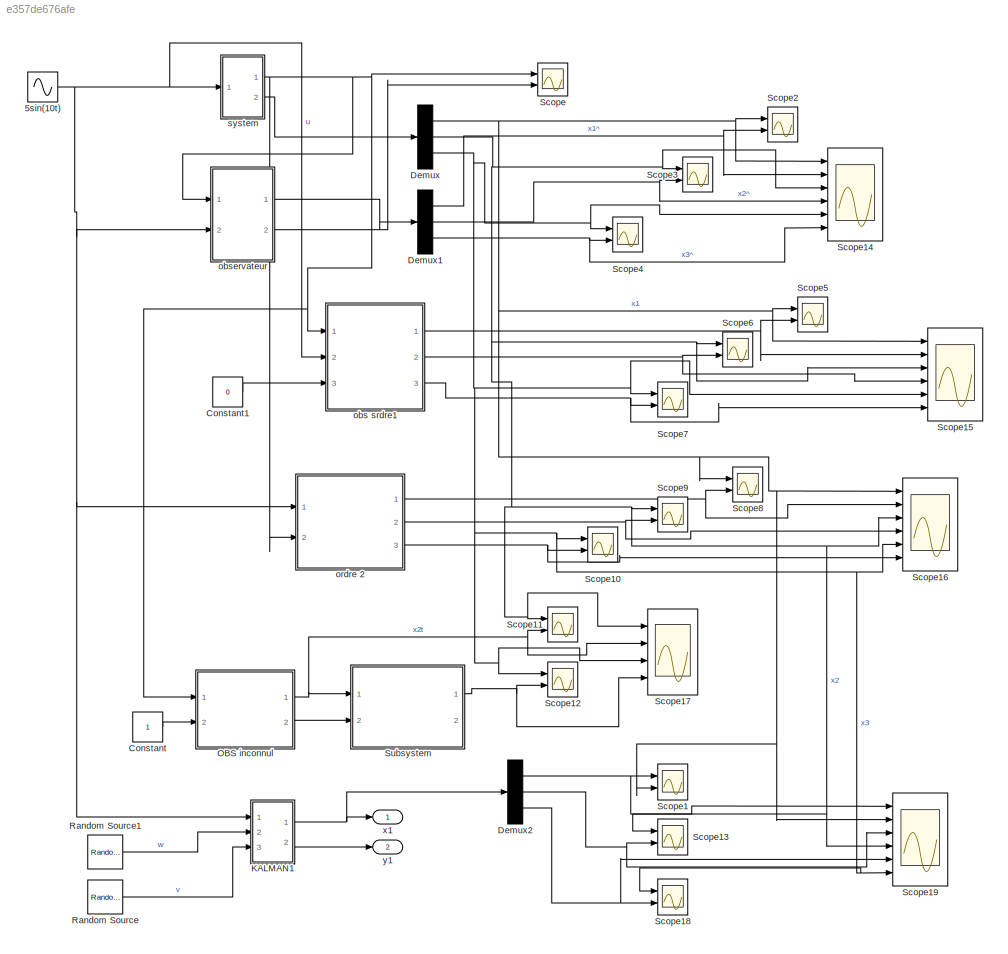
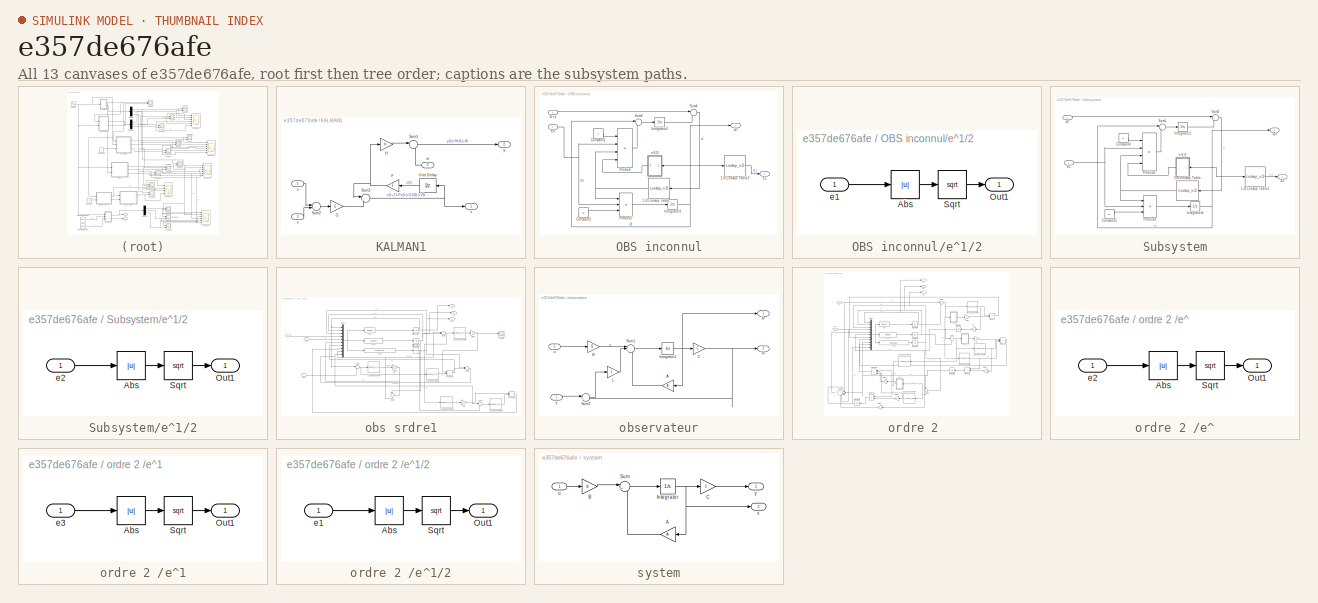
[diagram: thumbnail index - all 13 canvases of the model, root first then tree order]
MODEL slx_e357de676afe
KIND model
CONFIG AbsTol = auto
CONFIG EnableMultiTasking = off
CONFIG FixedStep = auto
CONFIG MaxStep = auto
CONFIG MinStep = auto
CONFIG RelTol = 1e-3
CONFIG SampleTimeConstraint = Unconstrained
CONFIG Solver = VariableStepAuto
CONFIG SolverName = VariableStepAuto
CONFIG StartTime = 0.0
CONFIG StopTime = 10.0
BLOCK [Sin] 5sin(10t)
  Amplitude = 5
  Frequency = 10
  Ports = [0, 1]
  SampleTime = 0
BLOCK [Constant] Constant
BLOCK [Constant] Constant1
  Value = 0
BLOCK [Demux] Demux
  DisplayOption = bar
  Outputs = 3
  Ports = [1, 3]
BLOCK [Demux] Demux1
  DisplayOption = bar
  Outputs = 3
  Ports = [1, 3]
BLOCK [Demux] Demux2
  DisplayOption = bar
  Outputs = 3
  Ports = [1, 3]
BLOCK [SubSystem] KALMAN1
  Ports = [3, 2]
  RequestExecContextInheritance = off
  Variant = off
BLOCK [Gain] KALMAN1/F
  Gain = F
  Multiplication = Matrix(K*u)
  OutDataTypeStr = Inherit: Inherit via internal rule
  ParamDataTypeStr = Inherit: Inherit via internal rule
  SaturateOnIntegerOverflow = off
BLOCK [Gain] KALMAN1/G
  Gain = G
  Multiplication = Matrix(K*u)
  OutDataTypeStr = Inherit: Inherit via internal rule
  ParamDataTypeStr = Inherit: Inherit via internal rule
  SaturateOnIntegerOverflow = off
BLOCK [Gain] KALMAN1/H
  Gain = H
  Multiplication = Matrix(K*u)
  OutDataTypeStr = Inherit: Inherit via internal rule
  ParamDataTypeStr = Inherit: Inherit via internal rule
  SaturateOnIntegerOverflow = off
BLOCK [Sum] KALMAN1/Sum1
  IconShape = round
  InputSameDT = off
  Inputs = |++
  OutDataTypeStr = Inherit: Inherit via internal rule
  Ports = [2, 1]
  SaturateOnIntegerOverflow = off
BLOCK [Sum] KALMAN1/Sum2
  IconShape = round
  InputSameDT = off
  Inputs = |++
  OutDataTypeStr = Inherit: Inherit via internal rule
  Ports = [2, 1]
  SaturateOnIntegerOverflow = off
BLOCK [Sum] KALMAN1/Sum3
  IconShape = round
  InputSameDT = off
  Inputs = |++
  OutDataTypeStr = Inherit: Inherit via internal rule
  Ports = [2, 1]
  SaturateOnIntegerOverflow = off
BLOCK [UnitDelay] KALMAN1/Unit Delay
  InputProcessing = Elements as channels (sample based)
  SampleTime = -1
BLOCK [Inport] KALMAN1/u
  IconDisplay = Port number
BLOCK [Inport] KALMAN1/v
  IconDisplay = Port number
  Port = 3
BLOCK [Inport] KALMAN1/w
  IconDisplay = Port number
  Port = 2
BLOCK [Outport] KALMAN1/x
  IconDisplay = Port number
BLOCK [Outport] KALMAN1/y
  IconDisplay = Port number
  Port = 2
BLOCK [SubSystem] OBS inconnul
  Ports = [2, 2]
  RequestExecContextInheritance = off
  Variant = off
BLOCK [Lookup_n-D] OBS inconnul/1-D Lookup Table
  BreakpointsForDimension1 = [-500 -0.011 -0.01 0.01 0.011 500]
  InternalRulePriority = Speed
  NumberOfTableDimensions = 1
  Ports = [1, 1]
  RndMeth = Simplest
  Table = [-1 -1 -1 1 1 1 ]
BLOCK [Lookup_n-D] OBS inconnul/1-D Lookup Table2
  BreakpointsForDimension1 = [-500 -0.011 -0.01 0.01 0.011 500]
  InternalRulePriority = Speed
  NumberOfTableDimensions = 1
  Ports = [1, 1]
  RndMeth = Simplest
  Table = [0 0 1 1 0 0 ]
BLOCK [Constant] OBS inconnul/Constant1
  Value = l1
BLOCK [Constant] OBS inconnul/Constant2
  Value = a2
BLOCK [Inport] OBS inconnul/E0
  IconDisplay = Port number
  Port = 2
BLOCK [Outport] OBS inconnul/E1
  IconDisplay = Port number
  Port = 2
BLOCK [Integrator] OBS inconnul/Integrator2
  Ports = [1, 1]
BLOCK [Integrator] OBS inconnul/Integrator3
  Ports = [1, 1]
BLOCK [Product] OBS inconnul/Product
  InputSameDT = off
  Inputs = 4
  OutDataTypeStr = Inherit: Inherit via internal rule
  Ports = [4, 1]
  RndMeth = Floor
  SaturateOnIntegerOverflow = off
BLOCK [Product] OBS inconnul/Product1
  InputSameDT = off
  Inputs = 3
  OutDataTypeStr = Inherit: Inherit via internal rule
  Ports = [3, 1]
  RndMeth = Floor
  SaturateOnIntegerOverflow = off
BLOCK [Sum] OBS inconnul/Sum3
  IconShape = round
  InputSameDT = off
  Inputs = |++
  OutDataTypeStr = Inherit: Inherit via internal rule
  Ports = [2, 1]
  SaturateOnIntegerOverflow = off
BLOCK [Sum] OBS inconnul/Sum4
  IconShape = round
  InputSameDT = off
  Inputs = |+-
  OutDataTypeStr = Inherit: Inherit via internal rule
  Ports = [2, 1]
  SaturateOnIntegerOverflow = off
BLOCK [SubSystem] OBS inconnul/e^1//2
  Ports = [1, 1]
  RequestExecContextInheritance = off
  Variant = off
BLOCK [Abs] OBS inconnul/e^1//2/Abs
  SaturateOnIntegerOverflow = off
BLOCK [Outport] OBS inconnul/e^1//2/Out1
  IconDisplay = Port number
BLOCK [Sqrt] OBS inconnul/e^1//2/Sqrt
BLOCK [Inport] OBS inconnul/e^1//2/e1
  IconDisplay = Port number
BLOCK [Inport] OBS inconnul/x1=y
  IconDisplay = Port number
BLOCK [Outport] OBS inconnul/x2t
  IconDisplay = Port number
BLOCK [Reference] Random Source  REF=dspsrcs4/Random
Source
  Ports = [0, 1]
  SourceBlock = dspsrcs4/Random\nSource
  SourceProductBaseCode = DS
  SourceProductName = DSP System Toolbox
  SourceType = Random Source
  UserDataPersistent = on
BLOCK [Reference] Random Source1  REF=dspsrcs4/Random
Source
  Ports = [0, 1]
  SourceBlock = dspsrcs4/Random\nSource
  SourceProductBaseCode = DS
  SourceProductName = DSP System Toolbox
  SourceType = Random Source
  UserDataPersistent = on
BLOCK [Scope] Scope
  NumInputPorts = 2
  Ports = [2]
  ScopeSpecificationString = Simulink.scopes.TimeScopeBlockCfg('CurrentConfiguration', extmgr.ConfigurationSet(extmgr.Configuration('Core','General UI',true),extmgr.Configuration('Core','Source UI',true),extmgr.Configuration('Sources','WiredSimulink',true),extmgr.Configuration('Visuals','Time Domain',true,'SerializedDisplays',{struct('MinYLimReal','-0.35246','MaxYLimReal','3.18706','YLabelReal','','MinYLimMag','0.00000','MaxY...<+1344ch>
BLOCK [Scope] Scope1
  NumInputPorts = 2
  Ports = [2]
  ScopeSpecificationString = Simulink.scopes.TimeScopeBlockCfg('CurrentConfiguration', extmgr.ConfigurationSet(extmgr.Configuration('Core','General UI',true),extmgr.Configuration('Core','Source UI',true),extmgr.Configuration('Sources','WiredSimulink',true,'DataLoggingVariableName','ScopeData5'),extmgr.Configuration('Visuals','Time Domain',true,'SerializedDisplays',{struct('MinYLimReal','-0.33432','MaxYLimReal','3.00884','YLab...<+1372ch>
BLOCK [Scope] Scope10
  NumInputPorts = 2
  Ports = [2]
  ScopeSpecificationString = Simulink.scopes.TimeScopeBlockCfg('CurrentConfiguration', extmgr.ConfigurationSet(extmgr.Configuration('Core','General UI',true),extmgr.Configuration('Core','Source UI',true),extmgr.Configuration('Sources','WiredSimulink',true,'DataLoggingVariableName','ScopeData6'),extmgr.Configuration('Visuals','Time Domain',true,'SerializedDisplays',{struct('MinYLimReal','-4.00045','MaxYLimReal','3.92275','YLab...<+1376ch>
BLOCK [Scope] Scope11
  NumInputPorts = 2
  Ports = [2]
  ScopeSpecificationString = Simulink.scopes.TimeScopeBlockCfg('CurrentConfiguration', extmgr.ConfigurationSet(extmgr.Configuration('Core','General UI',true),extmgr.Configuration('Core','Source UI',true),extmgr.Configuration('Sources','WiredSimulink',true,'DataLoggingVariableName','ScopeData7'),extmgr.Configuration('Visuals','Time Domain',true,'SerializedDisplays',{struct('MinYLimReal','-1.35375','MaxYLimReal','2.65592','YLab...<+1367ch>
BLOCK [Scope] Scope12
  NumInputPorts = 2
  Ports = [2]
  ScopeSpecificationString = Simulink.scopes.TimeScopeBlockCfg('CurrentConfiguration', extmgr.ConfigurationSet(extmgr.Configuration('Core','General UI',true),extmgr.Configuration('Core','Source UI',true),extmgr.Configuration('Sources','WiredSimulink',true,'DataLoggingVariableName','ScopeData8'),extmgr.Configuration('Visuals','Time Domain',true,'SerializedDisplays',{struct('MinYLimReal','-3.98415','MaxYLimReal','3.77602','YLab...<+1377ch>
BLOCK [Scope] Scope13
  NumInputPorts = 2
  Ports = [2]
  ScopeSpecificationString = Simulink.scopes.TimeScopeBlockCfg('CurrentConfiguration', extmgr.ConfigurationSet(extmgr.Configuration('Core','General UI',true),extmgr.Configuration('Core','Source UI',true),extmgr.Configuration('Sources','WiredSimulink',true,'DataLoggingVariableName','ScopeData6'),extmgr.Configuration('Visuals','Time Domain',true,'SerializedDisplays',{struct('MinYLimReal','-0.07858','MaxYLimReal','0.11411','YLab...<+1389ch>
BLOCK [Scope] Scope14
  NumInputPorts = 6
  Ports = [6]
  ScopeSpecificationString = Simulink.scopes.TimeScopeBlockCfg('CurrentConfiguration', extmgr.ConfigurationSet(extmgr.Configuration('Core','General UI',true),extmgr.Configuration('Core','Source UI',true),extmgr.Configuration('Sources','WiredSimulink',true,'DataLoggingVariableName','ScopeData1'),extmgr.Configuration('Visuals','Time Domain',true,'SerializedDisplays',{struct('MinYLimReal','-5.55359','MaxYLimReal','7.28373','YLab...<+1389ch>
BLOCK [Scope] Scope15
  NumInputPorts = 6
  Ports = [6]
  ScopeSpecificationString = Simulink.scopes.TimeScopeBlockCfg('CurrentConfiguration', extmgr.ConfigurationSet(extmgr.Configuration('Core','General UI',true),extmgr.Configuration('Core','Source UI',true),extmgr.Configuration('Sources','WiredSimulink',true,'DataLoggingVariableName','ScopeData2'),extmgr.Configuration('Visuals','Time Domain',true,'SerializedDisplays',{struct('MinYLimReal','-4.11384','MaxYLimReal','3.79043','YLab...<+1451ch>
BLOCK [Scope] Scope16
  NumInputPorts = 6
  Ports = [6]
  ScopeSpecificationString = Simulink.scopes.TimeScopeBlockCfg('CurrentConfiguration', extmgr.ConfigurationSet(extmgr.Configuration('Core','General UI',true),extmgr.Configuration('Core','Source UI',true),extmgr.Configuration('Sources','WiredSimulink',true,'DataLoggingVariableName','ScopeData3'),extmgr.Configuration('Visuals','Time Domain',true,'SerializedDisplays',{struct('MinYLimReal','-4.00045','MaxYLimReal','3.92275','YLab...<+1446ch>
BLOCK [Scope] Scope17
  NumInputPorts = 4
  Ports = [4]
  ScopeSpecificationString = Simulink.scopes.TimeScopeBlockCfg('CurrentConfiguration', extmgr.ConfigurationSet(extmgr.Configuration('Core','General UI',true),extmgr.Configuration('Core','Source UI',true),extmgr.Configuration('Sources','WiredSimulink',true,'DataLoggingVariableName','ScopeData4'),extmgr.Configuration('Visuals','Time Domain',true,'SerializedDisplays',{struct('MinYLimReal','-3.98415','MaxYLimReal','3.77602','YLab...<+1419ch>
BLOCK [Scope] Scope18
  NumInputPorts = 2
  Ports = [2]
  ScopeSpecificationString = Simulink.scopes.TimeScopeBlockCfg('CurrentConfiguration', extmgr.ConfigurationSet(extmgr.Configuration('Core','General UI',true),extmgr.Configuration('Core','Source UI',true),extmgr.Configuration('Sources','WiredSimulink',true,'DataLoggingVariableName','ScopeData7'),extmgr.Configuration('Visuals','Time Domain',true,'SerializedDisplays',{struct('MinYLimReal','-0.07858','MaxYLimReal','0.11411','YLab...<+1389ch>
BLOCK [Scope] Scope19
  NumInputPorts = 6
  Ports = [6]
  ScopeSpecificationString = Simulink.scopes.TimeScopeBlockCfg('CurrentConfiguration', extmgr.ConfigurationSet(extmgr.Configuration('Core','General UI',true),extmgr.Configuration('Core','Source UI',true),extmgr.Configuration('Sources','WiredSimulink',true,'DataLoggingVariableName','ScopeData8'),extmgr.Configuration('Visuals','Time Domain',true,'SerializedDisplays',{struct('MinYLimReal','-3.98415','MaxYLimReal','3.77602','YLab...<+1432ch>
BLOCK [Scope] Scope2
  NumInputPorts = 2
  Ports = [2]
  ScopeSpecificationString = Simulink.scopes.TimeScopeBlockCfg('CurrentConfiguration', extmgr.ConfigurationSet(extmgr.Configuration('Core','General UI',true),extmgr.Configuration('Core','Source UI',true),extmgr.Configuration('Sources','WiredSimulink',true,'DataLoggingVariableName','ScopeData1'),extmgr.Configuration('Visuals','Time Domain',true,'SerializedDisplays',{struct('MinYLimReal','-0.35246','MaxYLimReal','3.18706','YLab...<+1395ch>
BLOCK [Scope] Scope3
  NumInputPorts = 2
  Ports = [2]
  ScopeSpecificationString = Simulink.scopes.TimeScopeBlockCfg('CurrentConfiguration', extmgr.ConfigurationSet(extmgr.Configuration('Core','General UI',true),extmgr.Configuration('Core','Source UI',true),extmgr.Configuration('Sources','WiredSimulink',true,'DataLoggingVariableName','ScopeData2'),extmgr.Configuration('Visuals','Time Domain',true,'SerializedDisplays',{struct('MinYLimReal','-1.60878','MaxYLimReal','4.97968','YLab...<+1367ch>
BLOCK [Scope] Scope4
  NumInputPorts = 2
  Ports = [2]
  ScopeSpecificationString = Simulink.scopes.TimeScopeBlockCfg('CurrentConfiguration', extmgr.ConfigurationSet(extmgr.Configuration('Core','General UI',true),extmgr.Configuration('Core','Source UI',true),extmgr.Configuration('Sources','WiredSimulink',true,'DataLoggingVariableName','ScopeData3'),extmgr.Configuration('Visuals','Time Domain',true,'SerializedDisplays',{struct('MinYLimReal','-5.55356','MaxYLimReal','7.28373','YLab...<+1367ch>
BLOCK [Scope] Scope5
  NumInputPorts = 2
  Ports = [2]
  ScopeSpecificationString = Simulink.scopes.TimeScopeBlockCfg('CurrentConfiguration', extmgr.ConfigurationSet(extmgr.Configuration('Core','General UI',true),extmgr.Configuration('Core','Source UI',true),extmgr.Configuration('Sources','WiredSimulink',true,'DataLoggingVariableName','ScopeData1'),extmgr.Configuration('Visuals','Time Domain',true,'SerializedDisplays',{struct('MinYLimReal','-0.34517','MaxYLimReal','3.01092','YLab...<+1378ch>
BLOCK [Scope] Scope6
  NumInputPorts = 2
  Ports = [2]
  ScopeSpecificationString = Simulink.scopes.TimeScopeBlockCfg('CurrentConfiguration', extmgr.ConfigurationSet(extmgr.Configuration('Core','General UI',true),extmgr.Configuration('Core','Source UI',true),extmgr.Configuration('Sources','WiredSimulink',true,'DataLoggingVariableName','ScopeData2'),extmgr.Configuration('Visuals','Time Domain',true,'SerializedDisplays',{struct('MinYLimReal','-1.3693','MaxYLimReal','2.65765','YLabe...<+1395ch>
BLOCK [Scope] Scope7
  NumInputPorts = 2
  Ports = [2]
  ScopeSpecificationString = Simulink.scopes.TimeScopeBlockCfg('CurrentConfiguration', extmgr.ConfigurationSet(extmgr.Configuration('Core','General UI',true),extmgr.Configuration('Core','Source UI',true),extmgr.Configuration('Sources','WiredSimulink',true,'DataLoggingVariableName','ScopeData3'),extmgr.Configuration('Visuals','Time Domain',true,'SerializedDisplays',{struct('MinYLimReal','-4.11384','MaxYLimReal','3.79043','YLab...<+1378ch>
BLOCK [Scope] Scope8
  NumInputPorts = 2
  Ports = [2]
  ScopeSpecificationString = Simulink.scopes.TimeScopeBlockCfg('CurrentConfiguration', extmgr.ConfigurationSet(extmgr.Configuration('Core','General UI',true),extmgr.Configuration('Core','Source UI',true),extmgr.Configuration('Sources','WiredSimulink',true,'DataLoggingVariableName','ScopeData4'),extmgr.Configuration('Visuals','Time Domain',true,'SerializedDisplays',{struct('MinYLimReal','-0.33461','MaxYLimReal','3.01149','YLab...<+1395ch>
BLOCK [Scope] Scope9
  NumInputPorts = 2
  Ports = [2]
  ScopeSpecificationString = Simulink.scopes.TimeScopeBlockCfg('CurrentConfiguration', extmgr.ConfigurationSet(extmgr.Configuration('Core','General UI',true),extmgr.Configuration('Core','Source UI',true),extmgr.Configuration('Sources','WiredSimulink',true,'DataLoggingVariableName','ScopeData5'),extmgr.Configuration('Visuals','Time Domain',true,'SerializedDisplays',{struct('MinYLimReal','-1.35342','MaxYLimReal','2.65589','YLab...<+1376ch>
BLOCK [SubSystem] Subsystem
  Ports = [2, 2]
  RequestExecContextInheritance = off
  Variant = off
BLOCK [Lookup_n-D] Subsystem/1-D Lookup Table
  BreakpointsForDimension1 = [-500 -0.011 -0.01 0.01 0.011 500]
  InternalRulePriority = Speed
  NumberOfTableDimensions = 1
  Ports = [1, 1]
  RndMeth = Simplest
  Table = [-1 -1 -1 1 1 1 ]
BLOCK [Lookup_n-D] Subsystem/1-D Lookup Table1
  BreakpointsForDimension1 = [-500 -0.011 -0.01 0.01 0.011 500]
  InternalRulePriority = Speed
  NumberOfTableDimensions = 1
  Ports = [1, 1]
  RndMeth = Simplest
  Table = [0 0 1 1 0 0 ]
BLOCK [Constant] Subsystem/Constant4
  Value = l2
BLOCK [Constant] Subsystem/Constant5
  Value = a2
BLOCK [Inport] Subsystem/E1
  IconDisplay = Port number
  Port = 2
BLOCK [Outport] Subsystem/E2
  IconDisplay = Port number
  Port = 2
BLOCK [Integrator] Subsystem/Integrator1
  Ports = [1, 1]
BLOCK [Integrator] Subsystem/Integrator4
  Ports = [1, 1]
BLOCK [Product] Subsystem/Product2
  InputSameDT = off
  Inputs = 4
  OutDataTypeStr = Inherit: Inherit via internal rule
  Ports = [4, 1]
  RndMeth = Floor
  SaturateOnIntegerOverflow = off
BLOCK [Product] Subsystem/Product3
  InputSameDT = off
  Inputs = 3
  OutDataTypeStr = Inherit: Inherit via internal rule
  Ports = [3, 1]
  RndMeth = Floor
  SaturateOnIntegerOverflow = off
BLOCK [Sum] Subsystem/Sum1
  IconShape = round
  InputSameDT = off
  Inputs = |++
  OutDataTypeStr = Inherit: Inherit via internal rule
  Ports = [2, 1]
  SaturateOnIntegerOverflow = off
BLOCK [Sum] Subsystem/Sum2
  IconShape = round
  InputSameDT = off
  Inputs = |+-
  OutDataTypeStr = Inherit: Inherit via internal rule
  Ports = [2, 1]
  SaturateOnIntegerOverflow = off
BLOCK [SubSystem] Subsystem/e^1//2
  Ports = [1, 1]
  RequestExecContextInheritance = off
  Variant = off
BLOCK [Abs] Subsystem/e^1//2/Abs
  SaturateOnIntegerOverflow = off
BLOCK [Outport] Subsystem/e^1//2/Out1
  IconDisplay = Port number
BLOCK [Sqrt] Subsystem/e^1//2/Sqrt
BLOCK [Inport] Subsystem/e^1//2/e2
  IconDisplay = Port number
BLOCK [Inport] Subsystem/x2t
  IconDisplay = Port number
BLOCK [Outport] Subsystem/x3t
  IconDisplay = Port number
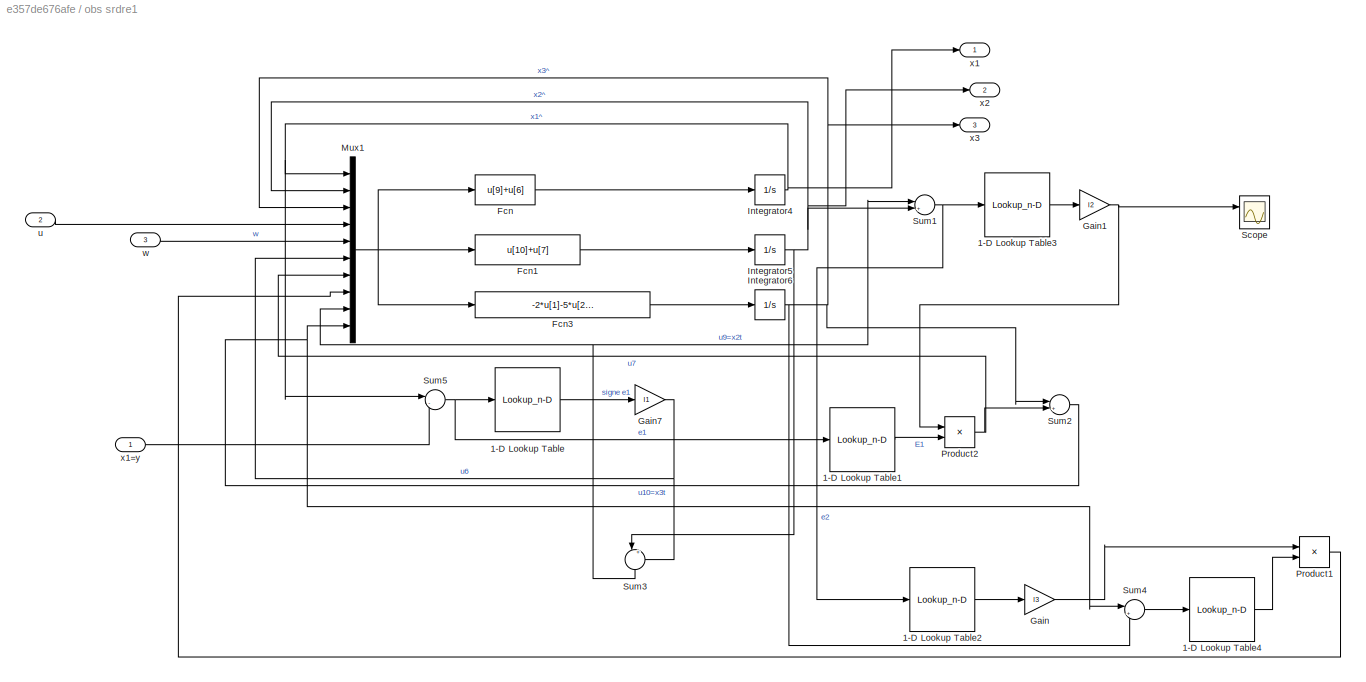
BLOCK [SubSystem] obs srdre1
  Ports = [3, 3]
  RequestExecContextInheritance = off
  Variant = off
BLOCK [Lookup_n-D] obs srdre1/1-D Lookup Table
  BreakpointsForDimension1 = [-500 -0.011 -0.01 0.01 0.011 500]
  InternalRulePriority = Speed
  NumberOfTableDimensions = 1
  Ports = [1, 1]
  RndMeth = Simplest
  Table = [-1 -1 -1 1 1 1 ]
BLOCK [Lookup_n-D] obs srdre1/1-D Lookup Table1
  BreakpointsForDimension1 = [-500 -0.011 -0.01 0.01 0.011 500]
  InternalRulePriority = Speed
  NumberOfTableDimensions = 1
  Ports = [1, 1]
  RndMeth = Simplest
  Table = [0 0 1 1 0 0 ]
BLOCK [Lookup_n-D] obs srdre1/1-D Lookup Table2
  BreakpointsForDimension1 = [-500 -0.011 -0.01 0.01 0.011 500]
  InternalRulePriority = Speed
  NumberOfTableDimensions = 1
  Ports = [1, 1]
  RndMeth = Simplest
  Table = [0 0 1 1 0 0 ]
BLOCK [Lookup_n-D] obs srdre1/1-D Lookup Table3
  BreakpointsForDimension1 = [-500 -0.011 -0.01 0.01 0.011 500]
  InternalRulePriority = Speed
  NumberOfTableDimensions = 1
  Ports = [1, 1]
  RndMeth = Simplest
  Table = [-1 -1 -1 1 1 1 ]
BLOCK [Lookup_n-D] obs srdre1/1-D Lookup Table4
  BreakpointsForDimension1 = [-500 -0.011 -0.01 0.01 0.011 500]
  InternalRulePriority = Speed
  NumberOfTableDimensions = 1
  Ports = [1, 1]
  RndMeth = Simplest
  Table = [-1 -1 -1 1 1 1 ]
BLOCK [Fcn] obs srdre1/Fcn
  Expr = u[9]+u[6]
BLOCK [Fcn] obs srdre1/Fcn1
  Expr = u[10]+u[7]
BLOCK [Fcn] obs srdre1/Fcn3
  Expr = -2*u[1]-5*u[2]-4*u[3]+u[4]+u[5]+u[8]
BLOCK [Gain] obs srdre1/Gain
  Gain = l3
  OutDataTypeStr = Inherit: Inherit via internal rule
  ParamDataTypeStr = Inherit: Inherit via internal rule
  SaturateOnIntegerOverflow = off
BLOCK [Gain] obs srdre1/Gain1
  Gain = l2
  OutDataTypeStr = Inherit: Inherit via internal rule
  ParamDataTypeStr = Inherit: Inherit via internal rule
  SaturateOnIntegerOverflow = off
BLOCK [Gain] obs srdre1/Gain7
  Gain = l1
  OutDataTypeStr = Inherit: Inherit via internal rule
  ParamDataTypeStr = Inherit: Inherit via internal rule
  SaturateOnIntegerOverflow = off
BLOCK [Integrator] obs srdre1/Integrator4
  Ports = [1, 1]
BLOCK [Integrator] obs srdre1/Integrator5
  Ports = [1, 1]
BLOCK [Integrator] obs srdre1/Integrator6
  Ports = [1, 1]
BLOCK [Mux] obs srdre1/Mux1
  DisplayOption = bar
  Inputs = 10
  Ports = [10, 1]
BLOCK [Product] obs srdre1/Product1
  InputSameDT = off
  OutDataTypeStr = Inherit: Inherit via internal rule
  Ports = [2, 1]
  RndMeth = Floor
  SaturateOnIntegerOverflow = off
BLOCK [Product] obs srdre1/Product2
  InputSameDT = off
  OutDataTypeStr = Inherit: Inherit via internal rule
  Ports = [2, 1]
  RndMeth = Floor
  SaturateOnIntegerOverflow = off
BLOCK [Scope] obs srdre1/Scope
  NumInputPorts = 2
  Ports = [2]
  ScopeSpecificationString = Simulink.scopes.TimeScopeBlockCfg('CurrentConfiguration', extmgr.ConfigurationSet(extmgr.Configuration('Core','General UI',true),extmgr.Configuration('Core','Source UI',true),extmgr.Configuration('Sources','WiredSimulink',true,'DataLoggingVariableName','ScopeData1'),extmgr.Configuration('Visuals','Time Domain',true,'SerializedDisplays',{struct('MinYLimReal','-1.00000','MaxYLimReal','1.00000','YLab...<+1375ch>
BLOCK [Sum] obs srdre1/Sum1
  IconShape = round
  InputSameDT = off
  Inputs = |+-
  OutDataTypeStr = Inherit: Inherit via internal rule
  Ports = [2, 1]
  SaturateOnIntegerOverflow = off
BLOCK [Sum] obs srdre1/Sum2
  IconShape = round
  InputSameDT = off
  Inputs = |++
  OutDataTypeStr = Inherit: Inherit via internal rule
  Ports = [2, 1]
  SaturateOnIntegerOverflow = off
BLOCK [Sum] obs srdre1/Sum3
  IconShape = round
  InputSameDT = off
  Inputs = |++
  OutDataTypeStr = Inherit: Inherit via internal rule
  Ports = [2, 1]
  SaturateOnIntegerOverflow = off
BLOCK [Sum] obs srdre1/Sum4
  IconShape = round
  InputSameDT = off
  Inputs = |+-
  OutDataTypeStr = Inherit: Inherit via internal rule
  Ports = [2, 1]
  SaturateOnIntegerOverflow = off
BLOCK [Sum] obs srdre1/Sum5
  IconShape = round
  InputSameDT = off
  Inputs = |-+
  OutDataTypeStr = Inherit: Inherit via internal rule
  Ports = [2, 1]
  SaturateOnIntegerOverflow = off
BLOCK [Inport] obs srdre1/u
  IconDisplay = Port number
  Port = 2
BLOCK [Inport] obs srdre1/w
  IconDisplay = Port number
  Port = 3
BLOCK [Outport] obs srdre1/x1
  IconDisplay = Port number
BLOCK [Inport] obs srdre1/x1=y
  IconDisplay = Port number
BLOCK [Outport] obs srdre1/x2
  IconDisplay = Port number
  Port = 2
BLOCK [Outport] obs srdre1/x3
  IconDisplay = Port number
  Port = 3
BLOCK [SubSystem] observateur
  Ports = [2, 2]
  RequestExecContextInheritance = off
  Variant = off
BLOCK [Gain] observateur/A
  Gain = A
  Multiplication = Matrix(K*u) (u vector)
  OutDataTypeStr = Inherit: Inherit via internal rule
  ParamDataTypeStr = Inherit: Inherit via internal rule
  SaturateOnIntegerOverflow = off
BLOCK [Gain] observateur/B
  Gain = B
  Multiplication = Matrix(K*u) (u vector)
  OutDataTypeStr = Inherit: Inherit via internal rule
  ParamDataTypeStr = Inherit: Inherit via internal rule
  SaturateOnIntegerOverflow = off
BLOCK [Gain] observateur/C
  Gain = C
  Multiplication = Matrix(K*u) (u vector)
  OutDataTypeStr = Inherit: Inherit via internal rule
  ParamDataTypeStr = Inherit: Inherit via internal rule
  SaturateOnIntegerOverflow = off
BLOCK [Integrator] observateur/Integrator1
  InitialCondition = [2 4 6]
  Ports = [1, 1]
BLOCK [Gain] observateur/L
  Gain = L
  Multiplication = Matrix(K*u) (u vector)
  OutDataTypeStr = Inherit: Inherit via internal rule
  ParamDataTypeStr = Inherit: Inherit via internal rule
  SaturateOnIntegerOverflow = off
BLOCK [Sum] observateur/Sum1
  IconShape = round
  InputSameDT = off
  Inputs = |+++
  OutDataTypeStr = Inherit: Inherit via internal rule
  Ports = [3, 1]
  SaturateOnIntegerOverflow = off
BLOCK [Sum] observateur/Sum2
  IconShape = round
  InputSameDT = off
  Inputs = |+-
  OutDataTypeStr = Inherit: Inherit via internal rule
  Ports = [2, 1]
  SaturateOnIntegerOverflow = off
BLOCK [Outport] observateur/X^
  IconDisplay = Port number
BLOCK [Outport] observateur/Y^
  IconDisplay = Port number
  Port = 2
BLOCK [Inport] observateur/u
  IconDisplay = Port number
  Port = 2
BLOCK [Inport] observateur/y
  IconDisplay = Port number
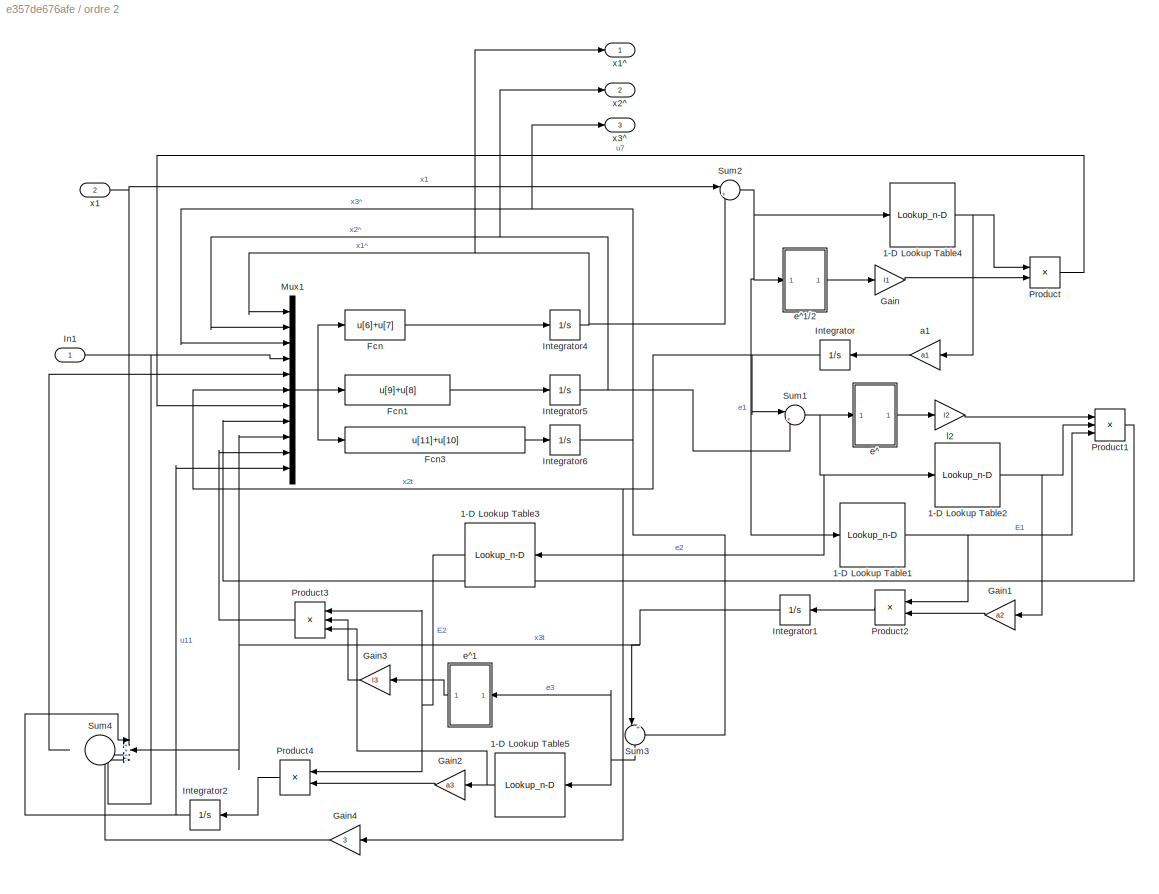
BLOCK [SubSystem] ordre 2 
  Ports = [2, 3]
  RequestExecContextInheritance = off
  Variant = off
BLOCK [Lookup_n-D] ordre 2 /1-D Lookup Table1
  BreakpointsForDimension1 = [-500 -0.011 -0.01 0.01 0.011 500]
  InternalRulePriority = Speed
  NumberOfTableDimensions = 1
  Ports = [1, 1]
  RndMeth = Simplest
  Table = [0 0 1 1 0 0 ]
BLOCK [Lookup_n-D] ordre 2 /1-D Lookup Table2
  BreakpointsForDimension1 = [-500 -0.011 -0.01 0.01 0.011 500]
  InternalRulePriority = Speed
  NumberOfTableDimensions = 1
  Ports = [1, 1]
  RndMeth = Simplest
  Table = [-1 -1 -1 1 1 1 ]
BLOCK [Lookup_n-D] ordre 2 /1-D Lookup Table3
  BreakpointsForDimension1 = [-500 -0.011 -0.01 0.01 0.011 500]
  InternalRulePriority = Speed
  NumberOfTableDimensions = 1
  Ports = [1, 1]
  RndMeth = Simplest
  Table = [0 0 1 1 0 0 ]
BLOCK [Lookup_n-D] ordre 2 /1-D Lookup Table4
  BreakpointsForDimension1 = [-500 -0.011 -0.01 0.01 0.011 500]
  InternalRulePriority = Speed
  NumberOfTableDimensions = 1
  Ports = [1, 1]
  RndMeth = Simplest
  Table = [-1 -1 -1 1 1 1 ]
BLOCK [Lookup_n-D] ordre 2 /1-D Lookup Table5
  BreakpointsForDimension1 = [-500 -0.011 -0.01 0.01 0.011 500]
  InternalRulePriority = Speed
  NumberOfTableDimensions = 1
  Ports = [1, 1]
  RndMeth = Simplest
  Table = [-1 -1 -1 1 1 1 ]
BLOCK [Fcn] ordre 2 /Fcn
  Expr = u[6]+u[7]
BLOCK [Fcn] ordre 2 /Fcn1
  Expr = u[9]+u[8]
BLOCK [Fcn] ordre 2 /Fcn3
  Expr = u[11]+u[10]
BLOCK [Gain] ordre 2 /Gain
  Gain = l1
  OutDataTypeStr = Inherit: Inherit via internal rule
  ParamDataTypeStr = Inherit: Inherit via internal rule
  SaturateOnIntegerOverflow = off
BLOCK [Gain] ordre 2 /Gain1
  Gain = a2
  OutDataTypeStr = Inherit: Inherit via internal rule
  ParamDataTypeStr = Inherit: Inherit via internal rule
  SaturateOnIntegerOverflow = off
BLOCK [Gain] ordre 2 /Gain2
  Gain = a3
  OutDataTypeStr = Inherit: Inherit via internal rule
  ParamDataTypeStr = Inherit: Inherit via internal rule
  SaturateOnIntegerOverflow = off
BLOCK [Gain] ordre 2 /Gain3
  Gain = l3
  OutDataTypeStr = Inherit: Inherit via internal rule
  ParamDataTypeStr = Inherit: Inherit via internal rule
  SaturateOnIntegerOverflow = off
BLOCK [Gain] ordre 2 /Gain4
  Gain = 3
  OutDataTypeStr = Inherit: Inherit via internal rule
  ParamDataTypeStr = Inherit: Inherit via internal rule
  SaturateOnIntegerOverflow = off
BLOCK [Inport] ordre 2 /In1
  IconDisplay = Port number
BLOCK [Integrator] ordre 2 /Integrator
  Ports = [1, 1]
BLOCK [Integrator] ordre 2 /Integrator1
  Ports = [1, 1]
BLOCK [Integrator] ordre 2 /Integrator2
  Ports = [1, 1]
BLOCK [Integrator] ordre 2 /Integrator4
  Ports = [1, 1]
BLOCK [Integrator] ordre 2 /Integrator5
  Ports = [1, 1]
BLOCK [Integrator] ordre 2 /Integrator6
  Ports = [1, 1]
BLOCK [Mux] ordre 2 /Mux1
  DisplayOption = bar
  Inputs = 11
  Ports = [11, 1]
BLOCK [Product] ordre 2 /Product
  InputSameDT = off
  OutDataTypeStr = Inherit: Inherit via internal rule
  Ports = [2, 1]
  RndMeth = Floor
  SaturateOnIntegerOverflow = off
BLOCK [Product] ordre 2 /Product1
  InputSameDT = off
  Inputs = 3
  OutDataTypeStr = Inherit: Inherit via internal rule
  Ports = [3, 1]
  RndMeth = Floor
  SaturateOnIntegerOverflow = off
BLOCK [Product] ordre 2 /Product2
  InputSameDT = off
  OutDataTypeStr = Inherit: Inherit via internal rule
  Ports = [2, 1]
  RndMeth = Floor
  SaturateOnIntegerOverflow = off
BLOCK [Product] ordre 2 /Product3
  InputSameDT = off
  Inputs = 3
  OutDataTypeStr = Inherit: Inherit via internal rule
  Ports = [3, 1]
  RndMeth = Floor
  SaturateOnIntegerOverflow = off
BLOCK [Product] ordre 2 /Product4
  InputSameDT = off
  OutDataTypeStr = Inherit: Inherit via internal rule
  Ports = [2, 1]
  RndMeth = Floor
  SaturateOnIntegerOverflow = off
BLOCK [Sum] ordre 2 /Sum1
  IconShape = round
  InputSameDT = off
  Inputs = |+-
  OutDataTypeStr = Inherit: Inherit via internal rule
  Ports = [2, 1]
  SaturateOnIntegerOverflow = off
BLOCK [Sum] ordre 2 /Sum2
  IconShape = round
  InputSameDT = off
  Inputs = |+-
  OutDataTypeStr = Inherit: Inherit via internal rule
  Ports = [2, 1]
  SaturateOnIntegerOverflow = off
BLOCK [Sum] ordre 2 /Sum3
  IconShape = round
  InputSameDT = off
  Inputs = |+-
  OutDataTypeStr = Inherit: Inherit via internal rule
  Ports = [2, 1]
  SaturateOnIntegerOverflow = off
BLOCK [Sum] ordre 2 /Sum4
  IconShape = round
  InputSameDT = off
  Inputs = |+++--
  OutDataTypeStr = Inherit: Inherit via internal rule
  Ports = [5, 1]
  SaturateOnIntegerOverflow = off
BLOCK [Gain] ordre 2 /a1
  Gain = a1
  OutDataTypeStr = Inherit: Inherit via internal rule
  ParamDataTypeStr = Inherit: Inherit via internal rule
  SaturateOnIntegerOverflow = off
BLOCK [SubSystem] ordre 2 /e^
  Ports = [1, 1]
  RequestExecContextInheritance = off
  Variant = off
BLOCK [Abs] ordre 2 /e^/Abs
  SaturateOnIntegerOverflow = off
BLOCK [Outport] ordre 2 /e^/Out1
  IconDisplay = Port number
BLOCK [Sqrt] ordre 2 /e^/Sqrt
BLOCK [Inport] ordre 2 /e^/e2
  IconDisplay = Port number
BLOCK [SubSystem] ordre 2 /e^1
  Ports = [1, 1]
  RequestExecContextInheritance = off
  Variant = off
BLOCK [SubSystem] ordre 2 /e^1//2
  Ports = [1, 1]
  RequestExecContextInheritance = off
  Variant = off
BLOCK [Abs] ordre 2 /e^1//2/Abs
  SaturateOnIntegerOverflow = off
BLOCK [Outport] ordre 2 /e^1//2/Out1
  IconDisplay = Port number
BLOCK [Sqrt] ordre 2 /e^1//2/Sqrt
BLOCK [Inport] ordre 2 /e^1//2/e1
  IconDisplay = Port number
BLOCK [Abs] ordre 2 /e^1/Abs
  SaturateOnIntegerOverflow = off
BLOCK [Outport] ordre 2 /e^1/Out1
  IconDisplay = Port number
BLOCK [Sqrt] ordre 2 /e^1/Sqrt
BLOCK [Inport] ordre 2 /e^1/e3
  IconDisplay = Port number
BLOCK [Gain] ordre 2 /l2
  Gain = l2
  OutDataTypeStr = Inherit: Inherit via internal rule
  ParamDataTypeStr = Inherit: Inherit via internal rule
  SaturateOnIntegerOverflow = off
BLOCK [Inport] ordre 2 /x1 
  IconDisplay = Port number
  Port = 2
BLOCK [Outport] ordre 2 /x1^
  IconDisplay = Port number
BLOCK [Outport] ordre 2 /x2^
  IconDisplay = Port number
  Port = 2
BLOCK [Outport] ordre 2 /x3^
  IconDisplay = Port number
  Port = 3
BLOCK [SubSystem] system
  Ports = [1, 2]
  RequestExecContextInheritance = off
  Variant = off
BLOCK [Gain] system/A
  Gain = A
  Multiplication = Matrix(K*u) (u vector)
  OutDataTypeStr = Inherit: Inherit via internal rule
  ParamDataTypeStr = Inherit: Inherit via internal rule
  SaturateOnIntegerOverflow = off
BLOCK [Gain] system/B
  Gain = B
  Multiplication = Matrix(K*u) (u vector)
  OutDataTypeStr = Inherit: Inherit via internal rule
  ParamDataTypeStr = Inherit: Inherit via internal rule
  SaturateOnIntegerOverflow = off
BLOCK [Gain] system/C
  Gain = C
  Multiplication = Matrix(K*u) (u vector)
  OutDataTypeStr = Inherit: Inherit via internal rule
  ParamDataTypeStr = Inherit: Inherit via internal rule
  SaturateOnIntegerOverflow = off
BLOCK [Integrator] system/Integrator
  InitialCondition = [1 2 3]
  Ports = [1, 1]
BLOCK [Sum] system/Sum
  IconShape = round
  InputSameDT = off
  Inputs = |++
  OutDataTypeStr = Inherit: Inherit via internal rule
  Ports = [2, 1]
  SaturateOnIntegerOverflow = off
BLOCK [Inport] system/u 
  IconDisplay = Port number
BLOCK [Outport] system/x
  IconDisplay = Port number
  Port = 2
BLOCK [Outport] system/y
  IconDisplay = Port number
BLOCK [Outport] x1
  IconDisplay = Port number
BLOCK [Outport] y1
  IconDisplay = Port number
  Port = 2
NET 5sin(10t):1 -> KALMAN1:1, obs srdre1:2, observateur:2, ordre 2 :1, system:1
LINE Constant1:1 -> obs srdre1:3
LINE Constant:1 -> OBS inconnul:2
NET Demux1:1 -> Scope14:2, Scope2:2
NET Demux1:2 -> Scope14:4, Scope3:2
NET Demux1:3 -> Scope14:6, Scope4:2
NET Demux2:1 -> Scope19:1, Scope1:1
NET Demux2:2 -> Scope13:2, Scope19:3
NET Demux2:3 -> Scope18:2, Scope19:5
NET Demux:1 -> Scope14:1, Scope15:1, Scope16:1, Scope19:2, Scope1:2, Scope2:1, Scope5:1, Scope8:1
NET Demux:2 -> Scope11:1, Scope13:1, Scope14:3, Scope15:3, Scope16:3, Scope17:1, Scope19:4, Scope3:1, Scope6:1, Scope9:1
NET Demux:3 -> Scope10:1, Scope12:1, Scope14:5, Scope15:5, Scope16:5, Scope17:3, Scope18:1, Scope19:6, Scope4:1, Scope7:1
NET KALMAN1/F:1 -> KALMAN1/H:1, KALMAN1/Sum3:1
LINE KALMAN1/G:1 -> KALMAN1/Sum3:2
LINE KALMAN1/H:1 -> KALMAN1/Sum1:1
LINE KALMAN1/Sum1:1 -> KALMAN1/y:1
LINE KALMAN1/Sum2:1 -> KALMAN1/G:1
NET KALMAN1/Sum3:1 -> KALMAN1/Unit Delay:1, KALMAN1/x:1
LINE KALMAN1/Unit Delay:1 -> KALMAN1/F:1
LINE KALMAN1/u:1 -> KALMAN1/Sum2:1
LINE KALMAN1/v:1 -> KALMAN1/Sum2:2
LINE KALMAN1/w:1 -> KALMAN1/Sum1:2
NET KALMAN1:1 -> Demux2:1, x1:1
LINE KALMAN1:2 -> y1:1
LINE OBS inconnul/1-D Lookup Table2:1 -> OBS inconnul/E1:1
NET OBS inconnul/1-D Lookup Table:1 -> OBS inconnul/Product1:1, OBS inconnul/Product:3
LINE OBS inconnul/Constant1:1 -> OBS inconnul/Product:1
LINE OBS inconnul/Constant2:1 -> OBS inconnul/Product1:3
NET OBS inconnul/E0:1 -> OBS inconnul/Product1:2, OBS inconnul/Product:2
LINE OBS inconnul/Integrator2:1 -> OBS inconnul/Sum4:2
NET OBS inconnul/Integrator3:1 -> OBS inconnul/Sum3:1, OBS inconnul/x2t:1
LINE OBS inconnul/Product1:1 -> OBS inconnul/Integrator3:1
LINE OBS inconnul/Product:1 -> OBS inconnul/Sum3:2
LINE OBS inconnul/Sum3:1 -> OBS inconnul/Integrator2:1
NET OBS inconnul/Sum4:1 -> OBS inconnul/1-D Lookup Table2:1, OBS inconnul/1-D Lookup Table:1, OBS inconnul/e^1//2:1
LINE OBS inconnul/e^1//2/Abs:1 -> OBS inconnul/e^1//2/Sqrt:1
LINE OBS inconnul/e^1//2/Sqrt:1 -> OBS inconnul/e^1//2/Out1:1
LINE OBS inconnul/e^1//2/e1:1 -> OBS inconnul/e^1//2/Abs:1
LINE OBS inconnul/e^1//2:1 -> OBS inconnul/Product:4
LINE OBS inconnul/x1=y:1 -> OBS inconnul/Sum4:1
NET OBS inconnul:1 -> Scope11:2, Scope17:2, Subsystem:1
LINE OBS inconnul:2 -> Subsystem:2
LINE Random Source1:1 -> KALMAN1:2
LINE Random Source:1 -> KALMAN1:3
LINE Subsystem/1-D Lookup Table1:1 -> Subsystem/E2:1
NET Subsystem/1-D Lookup Table:1 -> Subsystem/Product2:3, Subsystem/Product3:1
LINE Subsystem/Constant4:1 -> Subsystem/Product2:1
LINE Subsystem/Constant5:1 -> Subsystem/Product3:3
NET Subsystem/E1:1 -> Subsystem/Product2:2, Subsystem/Product3:2
LINE Subsystem/Integrator1:1 -> Subsystem/Sum2:2
NET Subsystem/Integrator4:1 -> Subsystem/Sum1:1, Subsystem/x3t:1
LINE Subsystem/Product2:1 -> Subsystem/Sum1:2
LINE Subsystem/Product3:1 -> Subsystem/Integrator4:1
LINE Subsystem/Sum1:1 -> Subsystem/Integrator1:1
NET Subsystem/Sum2:1 -> Subsystem/1-D Lookup Table1:1, Subsystem/1-D Lookup Table:1, Subsystem/e^1//2:1
LINE Subsystem/e^1//2/Abs:1 -> Subsystem/e^1//2/Sqrt:1
LINE Subsystem/e^1//2/Sqrt:1 -> Subsystem/e^1//2/Out1:1
LINE Subsystem/e^1//2/e2:1 -> Subsystem/e^1//2/Abs:1
LINE Subsystem/e^1//2:1 -> Subsystem/Product2:4
LINE Subsystem/x2t:1 -> Subsystem/Sum2:1
NET Subsystem:1 -> Scope12:2, Scope17:4
LINE obs srdre1/1-D Lookup Table1:1 -> obs srdre1/Product2:2
LINE obs srdre1/1-D Lookup Table2:1 -> obs srdre1/Gain:1
LINE obs srdre1/1-D Lookup Table3:1 -> obs srdre1/Gain1:1
LINE obs srdre1/1-D Lookup Table4:1 -> obs srdre1/Product1:2
LINE obs srdre1/1-D Lookup Table:1 -> obs srdre1/Gain7:1
LINE obs srdre1/Fcn1:1 -> obs srdre1/Integrator5:1
LINE obs srdre1/Fcn3:1 -> obs srdre1/Integrator6:1
LINE obs srdre1/Fcn:1 -> obs srdre1/Integrator4:1
NET obs srdre1/Gain1:1 -> obs srdre1/Product2:1, obs srdre1/Scope:1
NET obs srdre1/Gain7:1 -> obs srdre1/Mux1:6, obs srdre1/Sum3:2
LINE obs srdre1/Gain:1 -> obs srdre1/Product1:1
NET obs srdre1/Integrator4:1 -> obs srdre1/Mux1:1, obs srdre1/Sum5:1, obs srdre1/x1:1
NET obs srdre1/Integrator5:1 -> obs srdre1/Mux1:2, obs srdre1/Sum1:2, obs srdre1/Sum3:1, obs srdre1/x2:1
NET obs srdre1/Integrator6:1 -> obs srdre1/Mux1:3, obs srdre1/Sum2:1, obs srdre1/Sum4:2, obs srdre1/x3:1
NET obs srdre1/Mux1:1 -> obs srdre1/Fcn1:1, obs srdre1/Fcn3:1, obs srdre1/Fcn:1
LINE obs srdre1/Product1:1 -> obs srdre1/Mux1:8
NET obs srdre1/Product2:1 -> obs srdre1/Mux1:7, obs srdre1/Sum2:2
NET obs srdre1/Sum1:1 -> obs srdre1/1-D Lookup Table2:1, obs srdre1/1-D Lookup Table3:1
NET obs srdre1/Sum2:1 -> obs srdre1/Mux1:10, obs srdre1/Sum4:1
NET obs srdre1/Sum3:1 -> obs srdre1/Mux1:9, obs srdre1/Sum1:1
LINE obs srdre1/Sum4:1 -> obs srdre1/1-D Lookup Table4:1
NET obs srdre1/Sum5:1 -> obs srdre1/1-D Lookup Table1:1, obs srdre1/1-D Lookup Table:1
LINE obs srdre1/u:1 -> obs srdre1/Mux1:4
LINE obs srdre1/w:1 -> obs srdre1/Mux1:5
LINE obs srdre1/x1=y:1 -> obs srdre1/Sum5:2
NET obs srdre1:1 -> Scope15:2, Scope5:2
NET obs srdre1:2 -> Scope15:4, Scope6:2
NET obs srdre1:3 -> Scope15:6, Scope7:2
LINE observateur/A:1 -> observateur/Sum1:3
LINE observateur/B:1 -> observateur/Sum1:1
NET observateur/C:1 -> observateur/Sum2:2, observateur/Y^:1
NET observateur/Integrator1:1 -> observateur/A:1, observateur/C:1, observateur/X^:1
LINE observateur/L:1 -> observateur/Sum1:2
LINE observateur/Sum1:1 -> observateur/Integrator1:1
LINE observateur/Sum2:1 -> observateur/L:1
LINE observateur/u:1 -> observateur/B:1
LINE observateur/y:1 -> observateur/Sum2:1
LINE observateur:1 -> Demux1:1
LINE observateur:2 -> Scope:2
NET ordre 2 /1-D Lookup Table1:1 -> ordre 2 /Product1:3, ordre 2 /Product2:1
NET ordre 2 /1-D Lookup Table2:1 -> ordre 2 /Gain1:1, ordre 2 /Product1:2
NET ordre 2 /1-D Lookup Table3:1 -> ordre 2 /Product3:1, ordre 2 /Product4:1
NET ordre 2 /1-D Lookup Table4:1 -> ordre 2 /Product:1, ordre 2 /a1:1
NET ordre 2 /1-D Lookup Table5:1 -> ordre 2 /Gain2:1, ordre 2 /Product3:3
LINE ordre 2 /Fcn1:1 -> ordre 2 /Integrator5:1
LINE ordre 2 /Fcn3:1 -> ordre 2 /Integrator6:1
LINE ordre 2 /Fcn:1 -> ordre 2 /Integrator4:1
LINE ordre 2 /Gain1:1 -> ordre 2 /Product2:2
LINE ordre 2 /Gain2:1 -> ordre 2 /Product4:2
LINE ordre 2 /Gain3:1 -> ordre 2 /Product3:2
LINE ordre 2 /Gain4:1 -> ordre 2 /Sum4:5
LINE ordre 2 /Gain:1 -> ordre 2 /Product:2
NET ordre 2 /In1:1 -> ordre 2 /Mux1:4, ordre 2 /Sum4:4
NET ordre 2 /Integrator1:1 -> ordre 2 /Mux1:9, ordre 2 /Sum3:1, ordre 2 /Sum4:3
NET ordre 2 /Integrator2:1 -> ordre 2 /Mux1:11, ordre 2 /Sum4:1
NET ordre 2 /Integrator4:1 -> ordre 2 /Mux1:1, ordre 2 /Sum2:2, ordre 2 /x1^:1
NET ordre 2 /Integrator5:1 -> ordre 2 /Mux1:2, ordre 2 /Sum1:2, ordre 2 /x2^:1
NET ordre 2 /Integrator6:1 -> ordre 2 /Mux1:3, ordre 2 /Sum3:2, ordre 2 /x3^:1
NET ordre 2 /Integrator:1 -> ordre 2 /Gain4:1, ordre 2 /Mux1:6, ordre 2 /Sum1:1
NET ordre 2 /Mux1:1 -> ordre 2 /Fcn1:1, ordre 2 /Fcn3:1, ordre 2 /Fcn:1
LINE ordre 2 /Product1:1 -> ordre 2 /Mux1:8
LINE ordre 2 /Product2:1 -> ordre 2 /Integrator1:1
LINE ordre 2 /Product3:1 -> ordre 2 /Mux1:10
LINE ordre 2 /Product4:1 -> ordre 2 /Integrator2:1
LINE ordre 2 /Product:1 -> ordre 2 /Mux1:7
NET ordre 2 /Sum1:1 -> ordre 2 /1-D Lookup Table2:1, ordre 2 /1-D Lookup Table3:1, ordre 2 /e^:1
NET ordre 2 /Sum2:1 -> ordre 2 /1-D Lookup Table1:1, ordre 2 /1-D Lookup Table4:1, ordre 2 /e^1//2:1
NET ordre 2 /Sum3:1 -> ordre 2 /1-D Lookup Table5:1, ordre 2 /e^1:1
LINE ordre 2 /Sum4:1 -> ordre 2 /Mux1:5
LINE ordre 2 /a1:1 -> ordre 2 /Integrator:1
LINE ordre 2 /e^/Abs:1 -> ordre 2 /e^/Sqrt:1
LINE ordre 2 /e^/Sqrt:1 -> ordre 2 /e^/Out1:1
LINE ordre 2 /e^/e2:1 -> ordre 2 /e^/Abs:1
LINE ordre 2 /e^1//2/Abs:1 -> ordre 2 /e^1//2/Sqrt:1
LINE ordre 2 /e^1//2/Sqrt:1 -> ordre 2 /e^1//2/Out1:1
LINE ordre 2 /e^1//2/e1:1 -> ordre 2 /e^1//2/Abs:1
LINE ordre 2 /e^1//2:1 -> ordre 2 /Gain:1
LINE ordre 2 /e^1/Abs:1 -> ordre 2 /e^1/Sqrt:1
LINE ordre 2 /e^1/Sqrt:1 -> ordre 2 /e^1/Out1:1
LINE ordre 2 /e^1/e3:1 -> ordre 2 /e^1/Abs:1
LINE ordre 2 /e^1:1 -> ordre 2 /Gain3:1
LINE ordre 2 /e^:1 -> ordre 2 /l2:1
LINE ordre 2 /l2:1 -> ordre 2 /Product1:1
NET ordre 2 /x1 :1 -> ordre 2 /Sum2:1, ordre 2 /Sum4:2
NET ordre 2 :1 -> Scope16:2, Scope8:2
NET ordre 2 :2 -> Scope16:4, Scope9:2
NET ordre 2 :3 -> Scope10:2, Scope16:6
LINE system/A:1 -> system/Sum:2
LINE system/B:1 -> system/Sum:1
LINE system/C:1 -> system/y:1
NET system/Integrator:1 -> system/A:1, system/C:1, system/x:1
LINE system/Sum:1 -> system/Integrator:1
LINE system/u :1 -> system/B:1
NET system:1 -> OBS inconnul:1, Scope:1, obs srdre1:1, observateur:1, ordre 2 :2
LINE system:2 -> Demux:1
note: NET lines group one-source signal fan-out (src -> all destinations, sorted); 1:1 wires keep LINE
